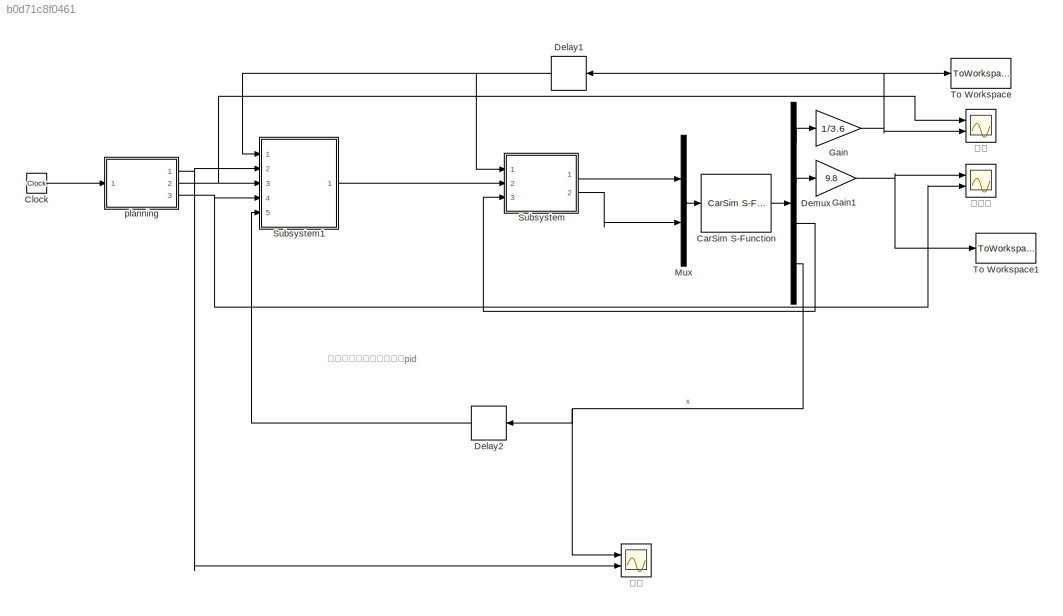
MODEL slx_b0d71c8f0461
KIND model
CONFIG AbsTol = auto
CONFIG EnableMultiTasking = off
CONFIG FixedStep = auto
CONFIG MaxStep = auto
CONFIG MinStep = auto
CONFIG RelTol = 1e-3
CONFIG SampleTimeConstraint = Unconstrained
CONFIG Solver = VariableStepAuto
CONFIG SolverName = VariableStepAuto
CONFIG StartTime = 0.0
CONFIG StopTime = 40
BLOCK [Reference] CarSim S-Function  REF=Solver_SF/CarSim S-Function
  Ports = [1, 1]
  Priority = 1
  SourceBlock = Solver_SF/CarSim S-Function
  SourceProductName = CarSim S-Function
  SourceType = Vehicle math model library
BLOCK [Clock] Clock
BLOCK [Delay] Delay1
  DelayLength = 10
  InputPortMap = u0
  NameLocation = top
  Ports = [1, 1]
BLOCK [Delay] Delay2
  DelayLength = 10
  InputPortMap = u0
  NameLocation = top
  Ports = [1, 1]
BLOCK [Demux] Demux
  Ports = [1, 4]
BLOCK [Gain] Gain
  Gain = 1/3.6
BLOCK [Gain] Gain1
  Gain = 9.8
BLOCK [Mux] Mux
  DisplayOption = bar
  Inputs = 2
  Ports = [2, 1]
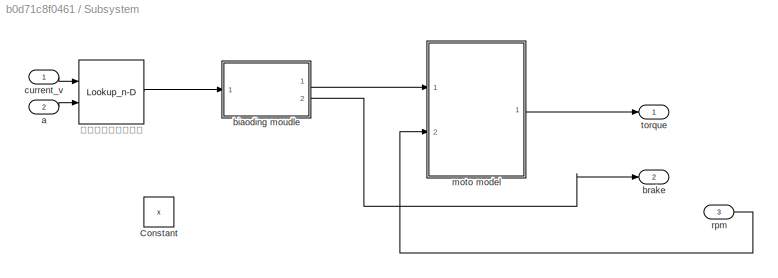
BLOCK [SubSystem] Subsystem
  Ports = [3, 2]
  RequestExecContextInheritance = off
BLOCK [Constant] Subsystem/Constant
  Commented = on
  Value = x
BLOCK [Inport] Subsystem/a
  Port = 2
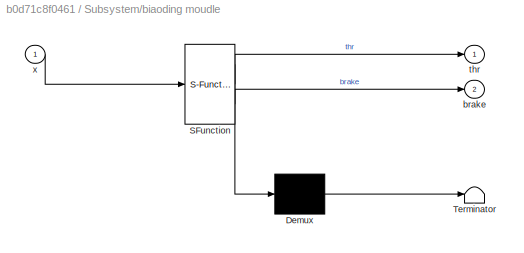
BLOCK [SubSystem] Subsystem/biaoding moudle
  ErrorFcn = Stateflow.Translate.translate
  PermitHierarchicalResolution = ExplicitOnly
  Ports = [1, 2]
  RequestExecContextInheritance = off
  SFBlockType = MATLAB Function
  TreatAsAtomicUnit = on
BLOCK [Demux] Subsystem/biaoding moudle/ Demux 
  Outputs = 1
  Ports = [1, 1]
BLOCK [S-Function] Subsystem/biaoding moudle/ SFunction 
  EnableBusSupport = on
  FunctionName = sf_sfun
  PortCounts = [1 3]
  Ports = [1, 3]
  SFcnIsStateOwnerBlock = off
  SFunctionDeploymentMode = off
  Tag = Stateflow S-Function 1
BLOCK [Terminator] Subsystem/biaoding moudle/ Terminator 
BLOCK [Outport] Subsystem/biaoding moudle/brake
  Port = 2
  VectorParamsAs1DForOutWhenUnconnected = off
BLOCK [Outport] Subsystem/biaoding moudle/thr
  VectorParamsAs1DForOutWhenUnconnected = off
BLOCK [Inport] Subsystem/biaoding moudle/x
BLOCK [Outport] Subsystem/brake
  Port = 2
BLOCK [Inport] Subsystem/current_v
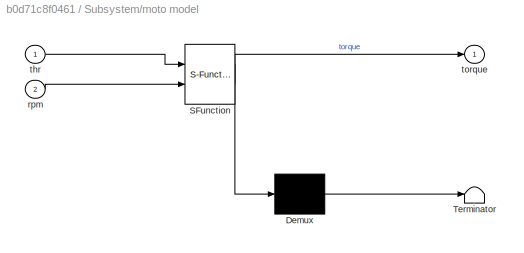
BLOCK [SubSystem] Subsystem/moto model
  ErrorFcn = Stateflow.Translate.translate
  PermitHierarchicalResolution = ExplicitOnly
  Ports = [2, 1]
  RequestExecContextInheritance = off
  SFBlockType = MATLAB Function
  TreatAsAtomicUnit = on
BLOCK [Demux] Subsystem/moto model/ Demux 
  Outputs = 1
  Ports = [1, 1]
BLOCK [S-Function] Subsystem/moto model/ SFunction 
  EnableBusSupport = on
  FunctionName = sf_sfun
  PortCounts = [2 2]
  Ports = [2, 2]
  SFcnIsStateOwnerBlock = off
  SFunctionDeploymentMode = off
  Tag = Stateflow S-Function 2
BLOCK [Terminator] Subsystem/moto model/ Terminator 
BLOCK [Inport] Subsystem/moto model/rpm
  Port = 2
BLOCK [Inport] Subsystem/moto model/thr
BLOCK [Outport] Subsystem/moto model/torque
  VectorParamsAs1DForOutWhenUnconnected = off
BLOCK [Inport] Subsystem/rpm
  Port = 3
BLOCK [Outport] Subsystem/torque
BLOCK [Lookup_n-D] Subsystem/油门刹车合并标定表
  BreakpointsForDimension1 = vubr
  BreakpointsForDimension2 = aubr
  InternalRulePriority = Speed
  Ports = [2, 1]
  RndMeth = Simplest
  Table = tablebr
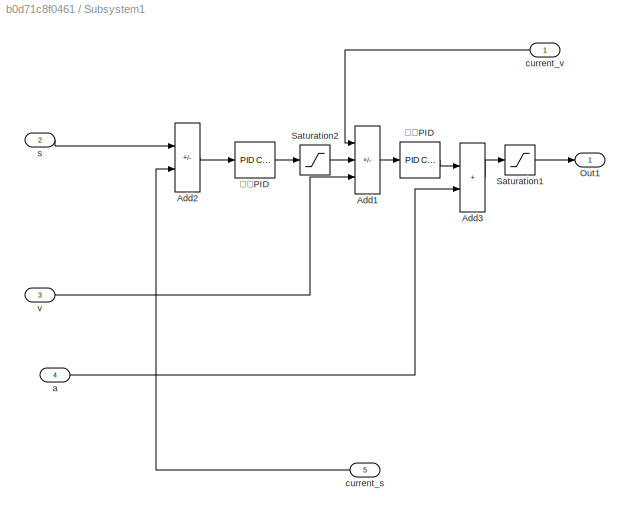
BLOCK [SubSystem] Subsystem1
  Ports = [5, 1]
  RequestExecContextInheritance = off
BLOCK [Sum] Subsystem1/Add1
  IconShape = rectangular
  Inputs = -++
  Ports = [3, 1]
BLOCK [Sum] Subsystem1/Add2
  IconShape = rectangular
  Inputs = +-
  Ports = [2, 1]
BLOCK [Sum] Subsystem1/Add3
  IconShape = rectangular
  Ports = [2, 1]
BLOCK [Outport] Subsystem1/Out1
BLOCK [Saturate] Subsystem1/Saturation1
  LowerLimit = -8
  UpperLimit = 5
BLOCK [Saturate] Subsystem1/Saturation2
  LowerLimit = -10
  UpperLimit = 10
BLOCK [Inport] Subsystem1/a
  Port = 4
BLOCK [Inport] Subsystem1/current_s
  Port = 5
BLOCK [Inport] Subsystem1/current_v
BLOCK [Inport] Subsystem1/s
  Port = 2
BLOCK [Inport] Subsystem1/v
  Port = 3
BLOCK [Reference] Subsystem1/位置PID  REF=simulink/Continuous/PID Controller
  Ports = [1, 1]
  SourceBlock = simulink/Continuous/PID Controller
  SourceProductBaseCode = SL
  SourceType = PID 1dof
BLOCK [Reference] Subsystem1/速度PID  REF=simulink/Continuous/PID Controller
  Ports = [1, 1]
  SourceBlock = simulink/Continuous/PID Controller
  SourceProductBaseCode = SL
  SourceType = PID 1dof
BLOCK [ToWorkspace] To Workspace
  FixptAsFi = on
  MaxDataPoints = inf
  Ports = [1]
  SampleTime = 0.1
  SaveFormat = Timeseries
  VariableName = vx
BLOCK [ToWorkspace] To Workspace1
  FixptAsFi = on
  MaxDataPoints = inf
  Ports = [1]
  SampleTime = 0.1
  SaveFormat = Timeseries
  VariableName = ax
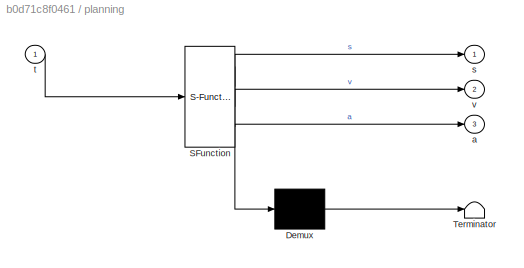
BLOCK [SubSystem] planning
  ErrorFcn = Stateflow.Translate.translate
  PermitHierarchicalResolution = ExplicitOnly
  Ports = [1, 3]
  RequestExecContextInheritance = off
  SFBlockType = MATLAB Function
  TreatAsAtomicUnit = on
BLOCK [Demux] planning/ Demux 
  Outputs = 1
  Ports = [1, 1]
BLOCK [S-Function] planning/ SFunction 
  EnableBusSupport = on
  FunctionName = sf_sfun
  PortCounts = [1 4]
  Ports = [1, 4]
  SFcnIsStateOwnerBlock = off
  SFunctionDeploymentMode = off
  Tag = Stateflow S-Function 3
BLOCK [Terminator] planning/ Terminator 
BLOCK [Outport] planning/a
  Port = 3
  VectorParamsAs1DForOutWhenUnconnected = off
BLOCK [Outport] planning/s
  VectorParamsAs1DForOutWhenUnconnected = off
BLOCK [Inport] planning/t
BLOCK [Outport] planning/v
  Port = 2
  VectorParamsAs1DForOutWhenUnconnected = off
BLOCK [Scope] 位置
  Floating = off
  NumInputPorts = 2
  Ports = [2]
  ScopeSpecificationString = Simulink.scopes.TimeScopeBlockCfg('CurrentConfiguration', extmgr.ConfigurationSet(extmgr.Configuration('Core','General UI',true),extmgr.Configuration('Core','Source UI',true),extmgr.Configuration('Sources','WiredSimulink',true,'DataLoggingVariableName','ScopeData1'),extmgr.Configuration('Visuals','Time Domain',true,'SerializedDisplays',{struct('MinYLimReal','-97.91667','MaxYLimReal','881.25','YLab...<+1445ch>
BLOCK [Scope] 加速度
  Floating = off
  NumInputPorts = 2
  Ports = [2]
  ScopeSpecificationString = Simulink.scopes.TimeScopeBlockCfg('CurrentConfiguration', extmgr.ConfigurationSet(extmgr.Configuration('Core','General UI',true),extmgr.Configuration('Core','Source UI',true),extmgr.Configuration('Sources','WiredSimulink',true,'DataLoggingVariableName','ScopeData1'),extmgr.Configuration('Visuals','Time Domain',true,'SerializedDisplays',{struct('MinYLimReal','-0.26331','MaxYLimReal','2.25388','YLab...<+1449ch>
BLOCK [Scope] 速度
  Floating = off
  NumInputPorts = 2
  Ports = [2]
  ScopeSpecificationString = Simulink.scopes.TimeScopeBlockCfg('CurrentConfiguration', extmgr.ConfigurationSet(extmgr.Configuration('Core','General UI',true),extmgr.Configuration('Core','Source UI',true),extmgr.Configuration('Sources','WiredSimulink',true,'DataLoggingVariableName','ScopeData1'),extmgr.Configuration('Visuals','Time Domain',true,'SerializedDisplays',{struct('MinYLimReal','-3.74852','MaxYLimReal','33.73664','YLa...<+1452ch>
ANNOTATION (root): 先标定，再取消注释做双pid
LINE CarSim S-Function:1 -> Demux:1
LINE Clock:1 -> planning:1
NET Delay1:1 -> Subsystem1:1, Subsystem:1
LINE Delay2:1 -> Subsystem1:5
LINE Demux:1 -> Gain:1
LINE Demux:2 -> Gain1:1
LINE Demux:3 -> Subsystem:3
NET Demux:4 -> Delay2:1, 位置:1
NET Gain1:1 -> To Workspace1:1, 加速度:1
NET Gain:1 -> Delay1:1, To Workspace:1, 速度:2
LINE Mux:1 -> CarSim S-Function:1
LINE Subsystem/a:1 -> Subsystem/油门刹车合并标定表:2
LINE Subsystem/biaoding moudle:1 -> Subsystem/moto model:1
LINE Subsystem/biaoding moudle:2 -> Subsystem/brake:1
LINE Subsystem/current_v:1 -> Subsystem/油门刹车合并标定表:1
LINE Subsystem/moto model:1 -> Subsystem/torque:1
LINE Subsystem/rpm:1 -> Subsystem/moto model:2
LINE Subsystem/油门刹车合并标定表:1 -> Subsystem/biaoding moudle:1
LINE Subsystem1/Add1:1 -> Subsystem1/速度PID:1
LINE Subsystem1/Add2:1 -> Subsystem1/位置PID:1
LINE Subsystem1/Add3:1 -> Subsystem1/Saturation1:1
LINE Subsystem1/Saturation1:1 -> Subsystem1/Out1:1
LINE Subsystem1/Saturation2:1 -> Subsystem1/Add1:2
LINE Subsystem1/a:1 -> Subsystem1/Add3:2
LINE Subsystem1/current_s:1 -> Subsystem1/Add2:2
LINE Subsystem1/current_v:1 -> Subsystem1/Add1:1
LINE Subsystem1/s:1 -> Subsystem1/Add2:1
LINE Subsystem1/v:1 -> Subsystem1/Add1:3
LINE Subsystem1/位置PID:1 -> Subsystem1/Saturation2:1
LINE Subsystem1/速度PID:1 -> Subsystem1/Add3:1
LINE Subsystem1:1 -> Subsystem:2
LINE Subsystem:1 -> Mux:1
LINE Subsystem:2 -> Mux:2
NET planning:1 -> Subsystem1:2, 位置:2
NET planning:2 -> Subsystem1:3, 速度:1
NET planning:3 -> Subsystem1:4, 加速度:2
note: NET lines group one-source signal fan-out (src -> all destinations, sorted); 1:1 wires keep LINE
CHART Subsystem/moto model states=1 transitions=1
  STATE_LABEL 'eML_blk_kernel()'
  STATE_LABEL 'SCRIPT:\nfunction torque = fcn(thr,rpm)\nTmax=380*thr;\n    if (rpm<=4523)\n        torque=Tmax;\n    else\n        torque=Tmax*4523/rpm;\n    end\nend\n'
CHART planning states=1 transitions=1
  STATE_LABEL 'eML_blk_kernel()'
  STATE_LABEL 'SCRIPT:\nfunction [s,v,a] = fcn(t)\nif t<10\n    s=0.1*t^3/3;\n    v=0.1*t^2;\n    a=0.2*t;\nelse\n    a=2-0.1*(t-10);\n    v=2*t-0.05*(t-10)^2-10;\n    s=t^2-0.05*(t-10)^3/3-10*t+100/3;\nend\n    '
CHART Subsystem/biaoding moudle states=1 transitions=1
  STATE_LABEL 'eML_blk_kernel()'
  STATE_LABEL 'SCRIPT:\nfunction [thr,brake] = fcn(x)\n    %正数代表油门，负数代表刹车\n    %不允许同时踩油门和刹车\n    if x>=0\n        thr=x;\n        brake=0;\n    else\n        thr=0;\n        brake=-x;\n    end\n'
CHART  states=0 transitions=0
CHART  states=0 transitions=0
CHART  states=0 transitions=0
